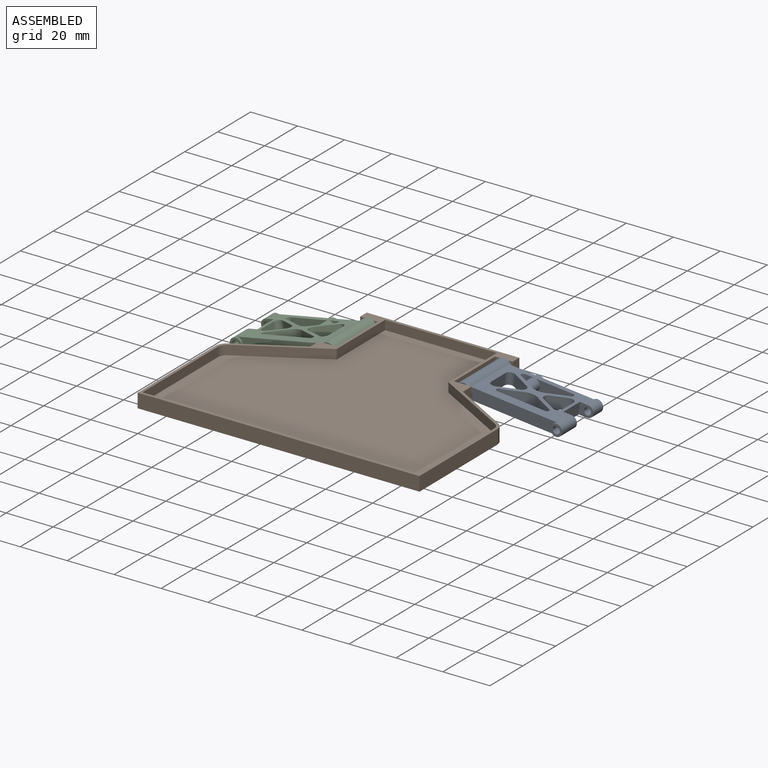
[diagram: assembled view]
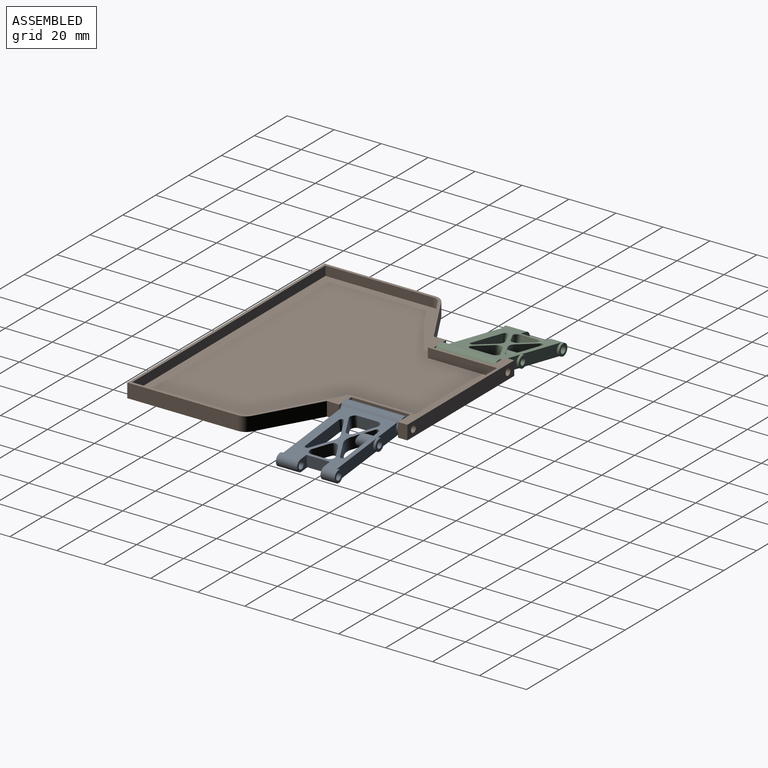
[diagram: assembled view, second angle]
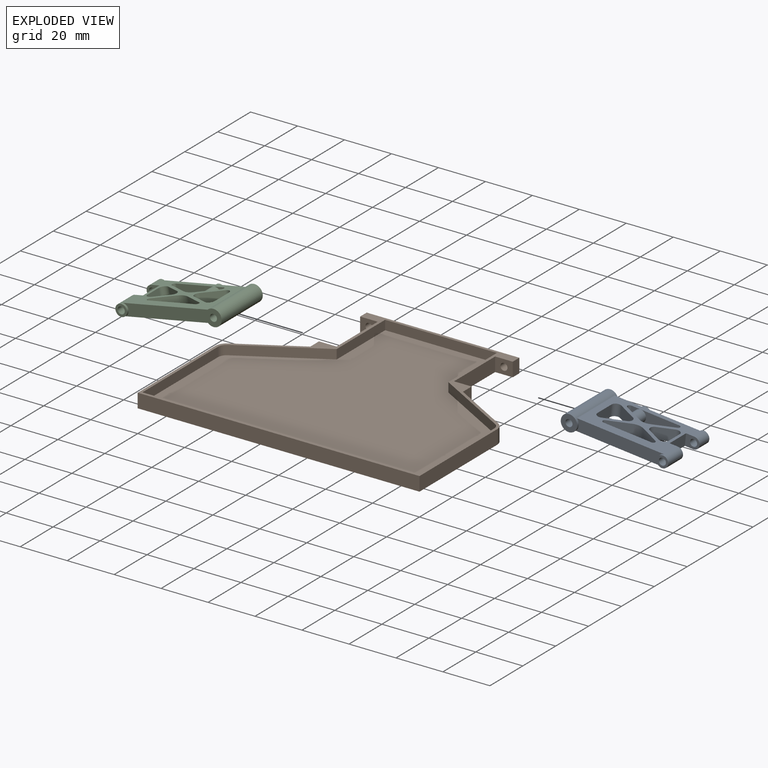
[diagram: exploded view]
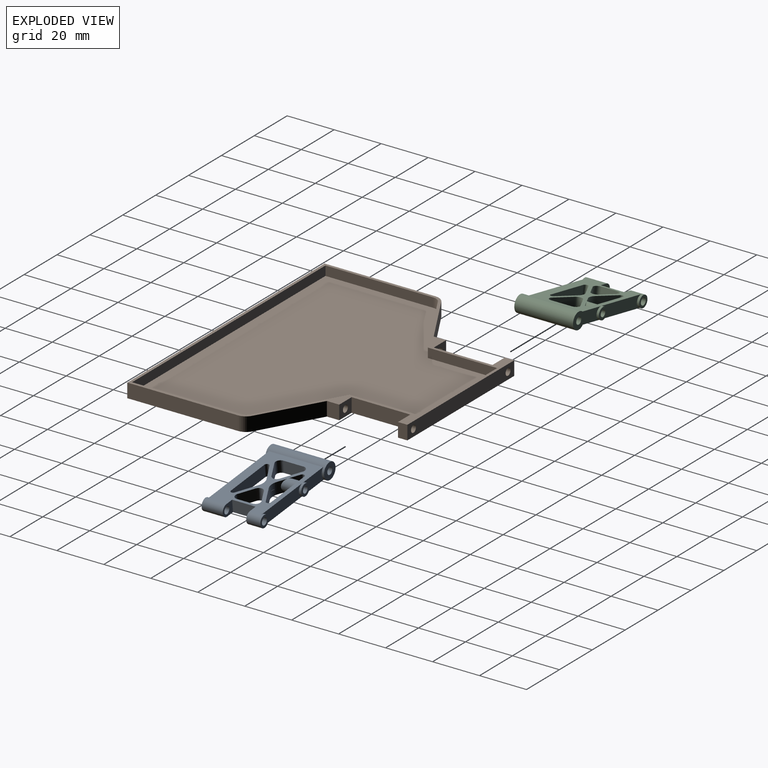
[diagram: exploded view, second angle]
ASSEMBLY  parts=3 mates=4
PART A: 49 faces, bbox 46x25x7 mm
  f0: cylinder r=1.38mm len=8.05mm, axis (0,1,0), area 63mm2, adj f1,f16
  f1: plane 2.75x2.75mm, normal (0.47,0.88,0), area 6.7mm2, adj f0
  f2: plane 5x3.85mm, normal (0.47,0.88,0), area 10.7mm2, adj f4,f5,f34,f48
  f3: plane 16.45x5mm, normal (0,-1,0), area 72.5mm2, adj f4,f5,f43,f48
  f4: plane 37.55x23mm, normal (0,0,-1), area 448.9mm2, adj f2,f3,f8,f9,f13,f17,f18,f19
  f5: plane 37.55x23mm, normal (0,0,1), area 448.9mm2, adj f2,f3,f8,f9,f13,f17,f18,f19
  f6: plane 5x5mm, normal (0,1,0), area 12.6mm2, adj f8,f10
  f7: plane 7x7mm, normal (0,1,0), area 31.4mm2, adj f13,f14
  f8: cylinder r=2.5mm len=6mm, axis (0,-1,0), area 55mm2, adj f4,f5,f6,f18,f47
  f9: cylinder r=2.5mm len=9mm, axis (0,-1,0), area 78.5mm2, adj f4,f5,f12,f17,f19
  f10: cylinder r=1.5mm len=6mm, axis (0,-1,0), area 56.5mm2, adj f6,f18
  f11: plane 7x7mm, normal (0,-1,0), area 31.4mm2, adj f13,f14
  f12: plane 5x5mm, normal (0,-1,0), area 12.6mm2, adj f9,f15
  f13: cylinder r=3.5mm len=25mm, axis (0,-1,0), area 421.7mm2, adj f4,f5,f7,f11,f17,f46
  f14: cylinder r=1.5mm len=25mm, axis (0,-1,0), area 235.6mm2, adj f7,f11
  f15: cylinder r=1.5mm len=9mm, axis (0,-1,0), area 84.8mm2, adj f12,f19
  f16: plane 5x5mm, normal (0,1,0), area 13.7mm2, adj f0,f45
  f17: plane 37.55x5mm, normal (0,-1,0), area 174.3mm2, adj f4,f5,f9,f13
  f18: plane 6x5mm, normal (0,-1,0), area 20.2mm2, adj f4,f5,f8,f10,f20
  f19: plane 6x5mm, normal (0,1,0), area 20.2mm2, adj f4,f5,f9,f15,f20
  f20: plane 10x5mm, normal (1,0,0), area 50mm2, adj f4,f5,f18,f19
  f21: plane 7.98x5mm, normal (-0.47,-0.88,0), area 45.3mm2, adj f4,f5,f38,f40
  f22: plane 8.6x5mm, normal (1,0,0), area 43mm2, adj f4,f5,f39,f40
  f23: plane 7.98x5mm, normal (-0.47,0.88,0), area 45.3mm2, adj f4,f5,f38,f39
  f24: plane 6.23x5mm, normal (0.47,-0.88,0), area 35.4mm2, adj f4,f5,f35,f37
  f25: plane 6.23x5mm, normal (0.47,0.88,0), area 35.4mm2, adj f4,f5,f36,f37
  f26: plane 6.71x5mm, normal (-1,0,0), area 33.6mm2, adj f4,f5,f35,f36
  f27: plane 8.33x5mm, normal (0.47,-0.88,0), area 47.3mm2, adj f4,f5,f33,f42
  f28: plane 20.46x5mm, normal (0,1,0), area 102.3mm2, adj f4,f5,f41,f42
  f29: plane 8.33x5mm, normal (-0.47,-0.88,0), area 47.3mm2, adj f4,f5,f33,f41
  f30: plane 8.33x5mm, normal (-0.47,0.88,0), area 47.3mm2, adj f4,f5,f34,f43
  f31: plane 5x4.01mm, normal (0,-1,0), area 10.2mm2, adj f4,f5,f44,f48
  f32: plane 5x4.48mm, normal (0.47,0.88,0), area 14.3mm2, adj f4,f5,f44,f48
  f33: cylinder r=5mm len=5mm, axis (0,0,1), area 24.7mm2, adj f4,f5,f27,f29
  f34: cylinder r=5mm len=5mm, axis (0,0,1), area 24.7mm2, adj f2,f4,f5,f30
  f35: cylinder r=2mm len=5mm, axis (0,0,-1), area 20.7mm2, adj f4,f5,f24,f26
  f36: cylinder r=2mm len=5mm, axis (0,0,1), area 20.7mm2, adj f4,f5,f25,f26
  f37: cylinder r=2mm len=5mm, axis (0,0,1), area 21.5mm2, adj f4,f5,f24,f25
  f38: cylinder r=2mm len=5mm, axis (0,0,1), area 21.5mm2, adj f4,f5,f21,f23
  f39: cylinder r=2mm len=5mm, axis (0,0,1), area 20.7mm2, adj f4,f5,f22,f23
  f40: cylinder r=2mm len=5mm, axis (0,0,-1), area 20.7mm2, adj f4,f5,f21,f22
  f41: cylinder r=1mm len=5mm, axis (0,0,-1), area 13.2mm2, adj f4,f5,f28,f29
  f42: cylinder r=1mm len=5mm, axis (0,0,1), area 13.2mm2, adj f4,f5,f27,f28
  f43: cylinder r=1mm len=5mm, axis (0,0,1), area 13.2mm2, adj f3,f4,f5,f30
  f44: cylinder r=1mm len=5mm, axis (0,0,-1), area 13.2mm2, adj f4,f5,f31,f32
  f45: cylinder r=2.5mm len=5mm, axis (0,1,0), area 15.7mm2, adj f16,f46,f47
  f46: plane 12.55x5mm, normal (0,1,0), area 49.3mm2, adj f4,f5,f13,f45
  f47: plane 25x5mm, normal (0,1,0), area 105.4mm2, adj f4,f5,f8,f45
  f48: cylinder r=2.5mm len=5.65mm, axis (0,1,0), area 67.5mm2, adj f2,f3,f31,f32
PART B: 38 faces, bbox 120x100x6 mm
  f0: plane 24.98x14.27mm, normal (0.5,0.87,0), area 172.6mm2, adj f9,f10,f21,f33
  f1: plane 25x6mm, normal (1,0,0), area 150mm2, adj f10,f21,f30,f32
  f2: plane 24.98x14.27mm, normal (-0.5,0.87,0), area 172.6mm2, adj f5,f10,f21,f26
  f3: plane 25x6mm, normal (-1,0,0), area 150mm2, adj f10,f21,f23,f25
  f4: plane 65x6mm, normal (0,1,0), area 375.9mm2, adj f10,f21,f24,f29,f31,f35
  f5: cylinder r=5mm len=6mm, axis (0,0,-1), area 31.5mm2, adj f2,f6,f10,f21
  f6: plane 47.1x6mm, normal (-1,0,0), area 282.6mm2, adj f5,f7,f10,f21
  f7: plane 120x6mm, normal (0,-1,0), area 720mm2, adj f6,f8,f10,f21
  f8: plane 47.1x6mm, normal (1,0,0), area 282.6mm2, adj f7,f9,f10,f21
  f9: cylinder r=5mm len=6mm, axis (0,0,-1), area 31.5mm2, adj f0,f8,f10,f21
  f10: plane 120x100mm, normal (0,0,-1), area 9304.4mm2, adj f0,f1,f2,f3,f4,f5,f6,f7
  f11: plane 33.09x18.91mm, normal (0.5,-0.87,0), area 152.4mm2, adj f12,f20,f21,f22
  f12: plane 29.5x4mm, normal (1,0,0), area 118mm2, adj f11,f13,f21,f22
  f13: plane 47.6x4mm, normal (0,-1,0), area 190.4mm2, adj f12,f14,f21,f22
  f14: plane 29.5x4mm, normal (-1,0,0), area 118mm2, adj f13,f15,f21,f22
  f15: plane 33.09x18.91mm, normal (-0.5,-0.87,0), area 152.4mm2, adj f14,f16,f21,f22
  f16: cylinder r=3.8mm len=4mm, axis (0,0,-1), area 16mm2, adj f15,f17,f21,f22
  f17: plane 45.9x4mm, normal (-1,0,0), area 183.6mm2, adj f16,f18,f21,f22
  f18: plane 117.6x4mm, normal (0,1,0), area 470.4mm2, adj f17,f19,f21,f22
  f19: plane 45.9x4mm, normal (1,0,0), area 183.6mm2, adj f18,f20,f21,f22
  f20: cylinder r=3.8mm len=4mm, axis (0,0,-1), area 16mm2, adj f11,f19,f21,f22
  f21: plane 120x100mm, normal (0,0,1), area 593mm2, adj f0,f1,f2,f3,f4,f5,f6,f7
  f22: plane 117.6x97.6mm, normal (0,0,1), area 8711.4mm2, adj f11,f12,f13,f14,f15,f16,f17,f18
  f23: plane 7.5x6mm, normal (0,-1,0), area 37.9mm2, adj f3,f10,f21,f24,f29
  f24: plane 6x4mm, normal (-1,0,0), area 24mm2, adj f4,f10,f21,f23
  f25: plane 7.5x6mm, normal (0,1,0), area 37.9mm2, adj f3,f10,f21,f26,f28
  f26: plane 6x5.29mm, normal (-1,0,0), area 31.7mm2, adj f2,f10,f21,f25
  f27: plane 3x3mm, normal (0,1,0), area 7.1mm2, adj f28
  f28: cylinder r=1.5mm len=3.5mm, axis (0,1,0), area 33mm2, adj f25,f27
  f29: cylinder r=1.5mm len=4mm, axis (0,1,0), area 37.7mm2, adj f4,f23
  f30: plane 7.5x6mm, normal (0,-1,0), area 37.9mm2, adj f1,f10,f21,f31,f35
  f31: plane 6x4mm, normal (1,0,0), area 24mm2, adj f4,f10,f21,f30
  f32: plane 7.5x6mm, normal (0,1,0), area 37.9mm2, adj f1,f10,f21,f33,f34
  f33: plane 6x5.29mm, normal (1,0,0), area 31.7mm2, adj f0,f10,f21,f32
  f34: cylinder r=1.5mm len=4mm, axis (0,1,0), area 34.1mm2, adj f32,f36,f37
  f35: cylinder r=1.5mm len=4mm, axis (0,1,0), area 37.7mm2, adj f4,f30
  f36: plane 2.73x0.88mm, normal (0.5,0.87,0), area 2mm2, adj f34,f37
  f37: plane 3x2.13mm, normal (0,1,0), area 5.4mm2, adj f34,f36
PART C: same geometry as A
PLACE A rot(axis=(0,1,0),6.1deg) t=(88.75,71,3)mm
PLACE B t=(60,0,0)mm
PLACE C rot(axis=(0,1,0),169deg) t=(31.25,71,3)mm
MATE cylindrical A.f14 <-> B.f34  axis (0,-1,0) through (88.75,96,3)mm
MATE cylindrical C.f14 <-> B.f28  axis (0,-1,0) through (31.25,96,3)mm
MATE planar A.f14 <-> B.f32  axis (0,-1,0) through (88.75,71,3)mm
MATE planar C.f14 <-> B.f25  axis (0,-1,0) through (31.25,71,3)mm
